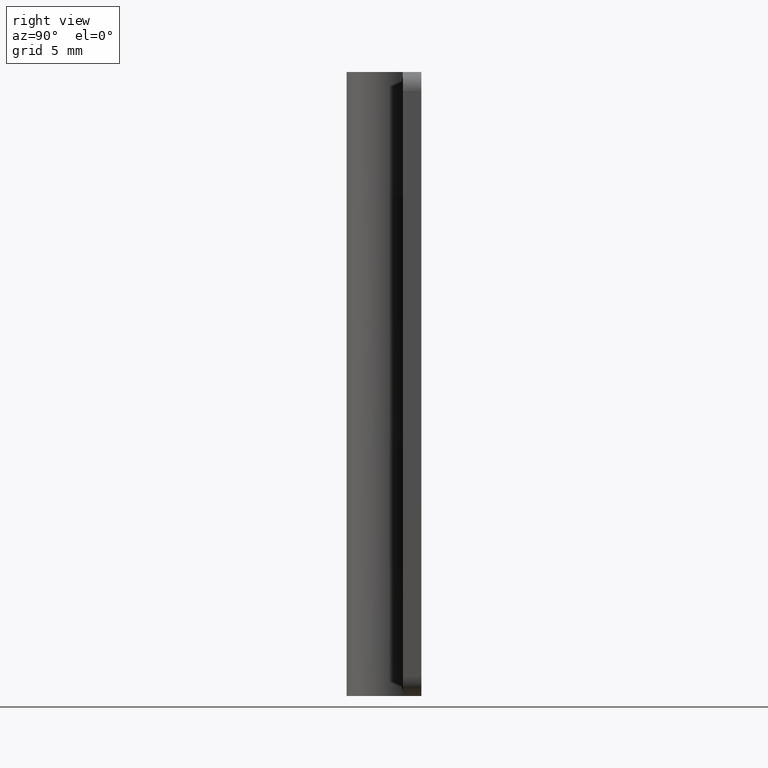
[diagram: clean part render]
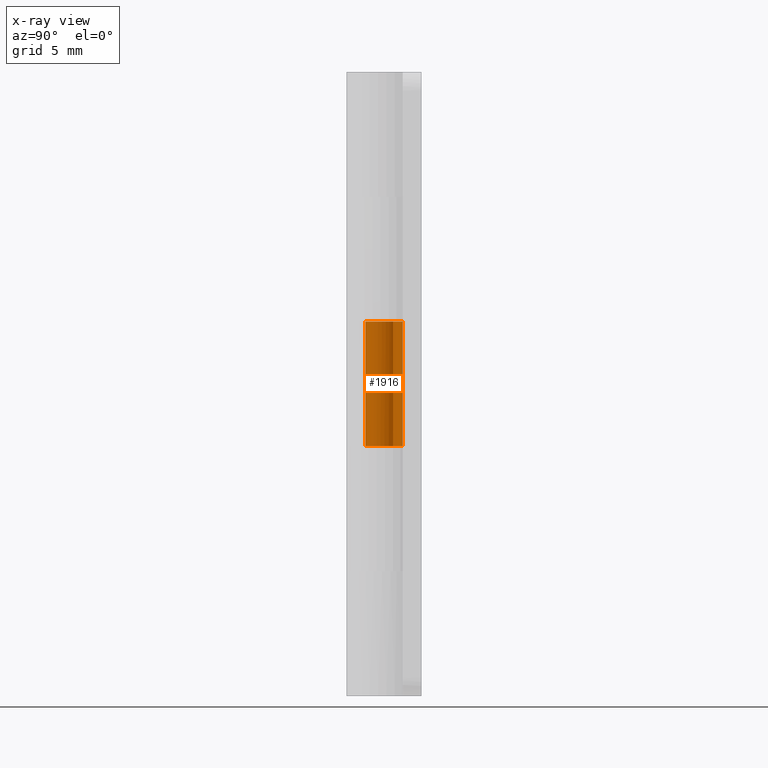
[diagram: x-ray — body ghosted, one internal face saturated and labeled with its STEP entity id]
A machine part, right view, then the same camera in x-ray: the body is ghosted and one INTERNAL B-rep face — a face not visible from any outside direction — is saturated and labeled: STEP entity #1916.
In plain terms, the highlighted face is a freeform B-spline surface patch.
Its self-contained STEP definition (entity closure, byte-faithful):
#1188=CARTESIAN_POINT('',(0.0,1.500000000000000,20.0));
#1189=VERTEX_POINT('',#1188);
#1195=CARTESIAN_POINT('',(1.313154598666890,0.725000000000000,20.0));
#1196=VERTEX_POINT('',#1195);
#1197=CARTESIAN_POINT('',(1.313154598666890,0.725000000000000,20.0));
#1198=CARTESIAN_POINT('',(1.866715792252885,-0.277636451035838,20.000000000000004));
#1199=CARTESIAN_POINT('',(1.045325295443045,-1.075776476182162,20.0));
#1200=CARTESIAN_POINT('',(0.223934798633207,-1.873916501328486,20.000000000000004));
#1201=CARTESIAN_POINT('',(-0.762397534098844,-1.291801068276382,20.0));
#1202=CARTESIAN_POINT('',(-1.748729866830896,-0.709685635224277,20.000000000000004));
#1203=CARTESIAN_POINT('',(-1.447014444021651,0.395157182387861,20.0));
#1204=CARTESIAN_POINT('',(-1.145299021212405,1.500000000000000,20.000000000000004));
#1205=CARTESIAN_POINT('',(0.0,1.500000000000000,20.0));
#1213=(BOUNDED_CURVE()B_SPLINE_CURVE(2,(#1197,#1198,#1199,#1200,#1201,#1202,#1203,#1204,#1205),.UNSPECIFIED.,.F.,.U.)B_SPLINE_CURVE_WITH_KNOTS((3,2,2,2,3),(0.0,0.250000000000000,0.500000000000000,0.750000000000000,1.0),.UNSPECIFIED.)CURVE()GEOMETRIC_REPRESENTATION_ITEM()RATIONAL_B_SPLINE_CURVE((1.0,0.794807562115481,1.0,0.794807562115481,1.0,0.794807562115481,1.0,0.794807562115481,1.0))REPRESENTATION_ITEM(''));
#1214=EDGE_CURVE('',#1196,#1189,#1213,.T.);
#1362=CARTESIAN_POINT('',(0.0,1.500000000000000,30.0));
#1363=VERTEX_POINT('',#1362);
#1406=CARTESIAN_POINT('',(1.313154598666890,0.725000000000000,30.0));
#1407=VERTEX_POINT('',#1406);
#1413=CARTESIAN_POINT('',(0.0,1.500000000000000,30.0));
#1414=CARTESIAN_POINT('',(-1.145299021212404,1.500000000000001,30.000000000000004));
#1415=CARTESIAN_POINT('',(-1.447014444021651,0.395157182387862,30.0));
#1416=CARTESIAN_POINT('',(-1.748729866830897,-0.709685635224275,30.000000000000004));
#1417=CARTESIAN_POINT('',(-0.762397534098847,-1.291801068276381,30.0));
#1418=CARTESIAN_POINT('',(0.223934798633204,-1.873916501328487,30.000000000000004));
#1419=CARTESIAN_POINT('',(1.045325295443044,-1.075776476182164,30.0));
#1420=CARTESIAN_POINT('',(1.866715792252885,-0.277636451035840,30.000000000000004));
#1421=CARTESIAN_POINT('',(1.313154598666891,0.724999999999998,30.0));
#1429=(BOUNDED_CURVE()B_SPLINE_CURVE(2,(#1413,#1414,#1415,#1416,#1417,#1418,#1419,#1420,#1421),.UNSPECIFIED.,.F.,.U.)B_SPLINE_CURVE_WITH_KNOTS((3,2,2,2,3),(0.0,0.250000000000000,0.500000000000000,0.750000000000000,1.0),.UNSPECIFIED.)CURVE()GEOMETRIC_REPRESENTATION_ITEM()RATIONAL_B_SPLINE_CURVE((1.0,0.794807562115481,1.0,0.794807562115481,1.0,0.794807562115481,1.0,0.794807562115481,1.0))REPRESENTATION_ITEM(''));
#1430=EDGE_CURVE('',#1363,#1407,#1429,.T.);
#1703=CARTESIAN_POINT('',(0.0,1.500000000000000,30.0));
#1704=CARTESIAN_POINT('',(0.0,1.500000000000000,20.0));
#1705=QUASI_UNIFORM_CURVE('',1,(#1703,#1704),.UNSPECIFIED.,.F.,.U.);
#1706=EDGE_CURVE('',#1363,#1189,#1705,.T.);
#1878=CARTESIAN_POINT('',(1.313154598666890,0.725000000000000,30.0));
#1879=CARTESIAN_POINT('',(1.313154598666890,0.725000000000000,20.0));
#1880=QUASI_UNIFORM_CURVE('',1,(#1878,#1879),.UNSPECIFIED.,.F.,.U.);
#1881=EDGE_CURVE('',#1407,#1196,#1880,.T.);
#1888=CARTESIAN_POINT('',(0.041795194001608,1.499417607525791,30.250000000000000));
#1889=CARTESIAN_POINT('',(0.041795194001608,1.499417607525791,19.743749999999999));
#1890=CARTESIAN_POINT('',(-1.798857747343561,1.550724492537029,30.250000000000000));
#1891=CARTESIAN_POINT('',(-1.798857747343561,1.550724492537029,19.743749999999991));
#1892=CARTESIAN_POINT('',(-1.476892294706675,-0.262276857225432,30.250000000000000));
#1893=CARTESIAN_POINT('',(-1.476892294706675,-0.262276857225432,19.743749999999999));
#1894=CARTESIAN_POINT('',(-1.154926842069790,-2.075278206987892,30.250000000000000));
#1895=CARTESIAN_POINT('',(-1.154926842069790,-2.075278206987892,19.743749999999991));
#1896=CARTESIAN_POINT('',(0.555511954861346,-1.393343628831784,30.250000000000000));
#1897=CARTESIAN_POINT('',(0.555511954861346,-1.393343628831784,19.743749999999999));
#1898=CARTESIAN_POINT('',(2.265950751792481,-0.711409050675676,30.250000000000000));
#1899=CARTESIAN_POINT('',(2.265950751792481,-0.711409050675676,19.743749999999991));
#1900=CARTESIAN_POINT('',(1.252223736879703,0.825793989318783,30.250000000000000));
#1901=CARTESIAN_POINT('',(1.252223736879703,0.825793989318783,19.743749999999999));
#1909=(BOUNDED_SURFACE()B_SPLINE_SURFACE(1,2,((#1888,#1890,#1892,#1894,#1896,#1898,#1900),(#1889,#1891,#1893,#1895,#1897,#1899,#1901)),.UNSPECIFIED.,.F.,.F.,.U.)B_SPLINE_SURFACE_WITH_KNOTS((2,2),(3,2,2,3),(0.0,10.506250000000010),(0.0,2.851148607098875,5.702297214197751,8.553445821296627),.UNSPECIFIED.)GEOMETRIC_REPRESENTATION_ITEM()RATIONAL_B_SPLINE_SURFACE(((1.0,0.631578351302498,1.0,0.631578351302498,1.0,0.631578351302498,1.0),(1.0,0.631578351302498,1.0,0.631578351302498,1.0,0.631578351302498,1.0)))REPRESENTATION_ITEM('')SURFACE());
#1910=ORIENTED_EDGE('',*,*,#1881,.T.);
#1911=ORIENTED_EDGE('',*,*,#1214,.T.);
#1912=ORIENTED_EDGE('',*,*,#1706,.F.);
#1913=ORIENTED_EDGE('',*,*,#1430,.T.);
#1914=EDGE_LOOP('',(#1910,#1911,#1912,#1913));
#1915=FACE_OUTER_BOUND('',#1914,.T.);
#1916=ADVANCED_FACE('',(#1915),#1909,.F.);